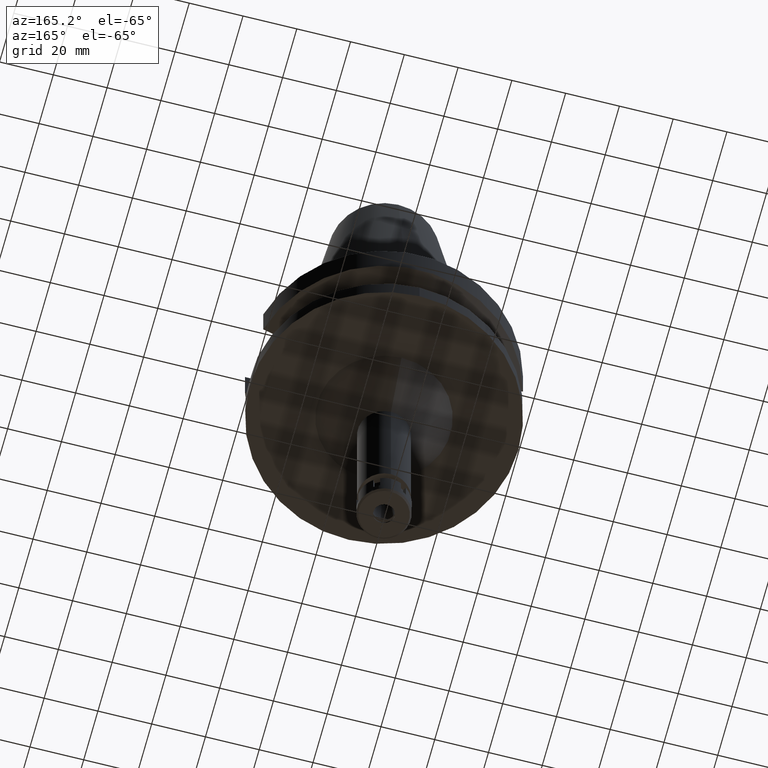
[diagram: clean part render]
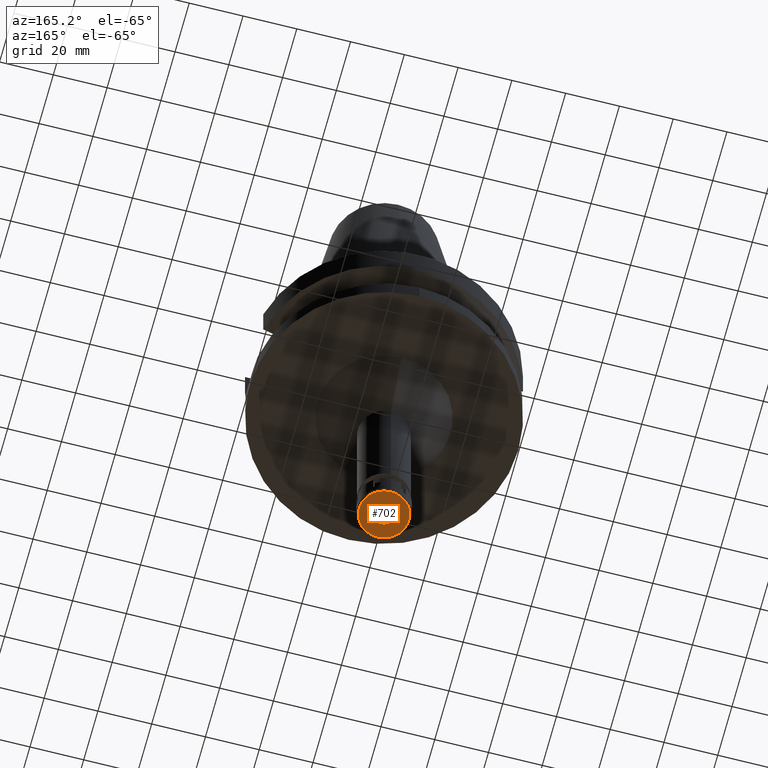
[diagram: same view with one face highlighted and labeled with its STEP entity id]
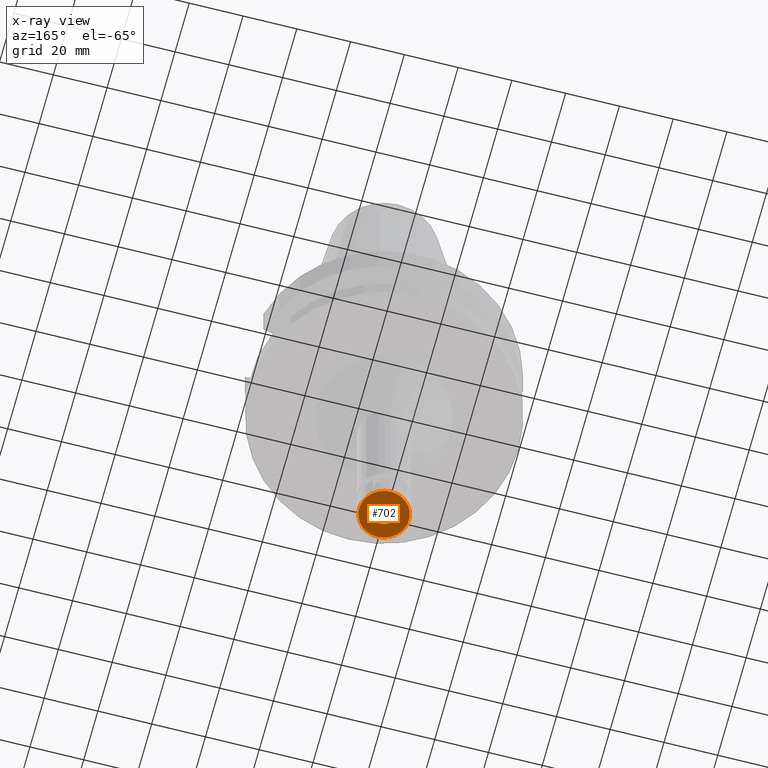
[diagram: x-ray of the same camera — body ghosted, the highlighted face saturated]
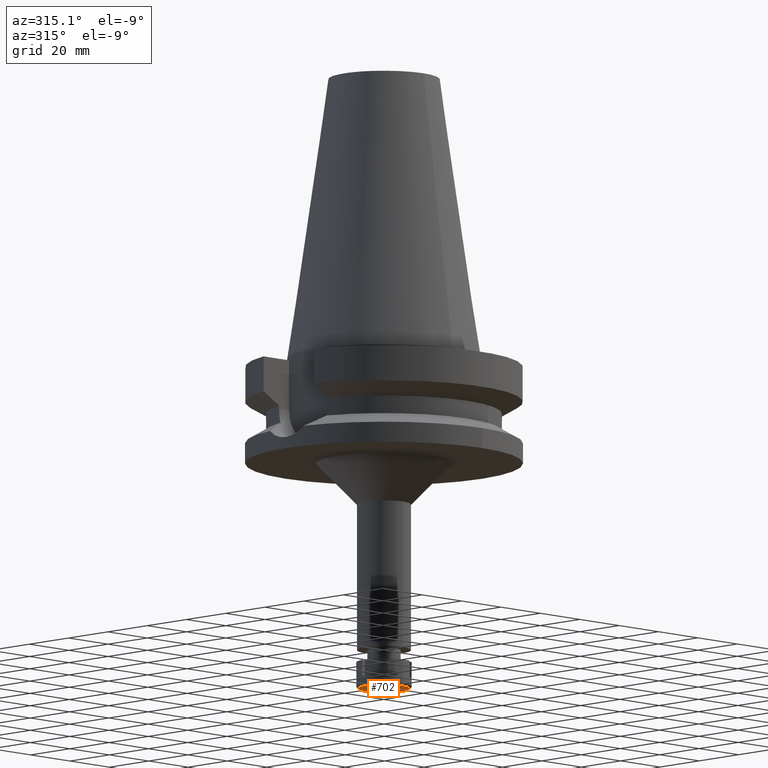
[diagram: same view with one face highlighted and labeled with its STEP entity id]
A machine part, auxiliary view. The second image highlights one B-rep face of the part: STEP entity #702.
The next image is the same camera in x-ray: the body ghosted, the highlighted face saturated — about 0% of this face is hidden behind the body in this view.
A second angle (auxiliary view) of the same face is appended — the face is thin or edge-on in the first view.
In plain terms, the highlighted planar face has unit normal (0, 0, -1).
Its self-contained STEP definition (entity closure, byte-faithful):
#91 = PLANE ( 'NONE',  #380 ) ;
#206 = CARTESIAN_POINT ( 'NONE',  ( 0.0000000000000000000, 9.299999999999998934, -9.500000000000000000 ) ) ;
#380 = AXIS2_PLACEMENT_3D ( 'NONE', #629, #2968, #644 ) ;
#471 = VERTEX_POINT ( 'NONE', #951 ) ;
#560 = DIRECTION ( 'NONE',  ( 0.0000000000000000000, 0.0000000000000000000, 1.000000000000000000 ) ) ;
#629 = CARTESIAN_POINT ( 'NONE',  ( 0.0000000000000000000, 0.0000000000000000000, -9.500000000000000000 ) ) ;
#644 = DIRECTION ( 'NONE',  ( 0.0000000000000000000, -1.000000000000000000, 0.0000000000000000000 ) ) ;
#681 = CIRCLE ( 'NONE', #2900, 3.950000000000000178 ) ;
#698 = FACE_OUTER_BOUND ( 'NONE', #876, .T. ) ;
#702 = ADVANCED_FACE ( 'NONE', ( #698, #2101 ), #91, .T. ) ;
#876 = EDGE_LOOP ( 'NONE', ( #3064, #2200 ) ) ;
#912 = EDGE_CURVE ( 'NONE', #2658, #2076, #3186, .T. ) ;
#951 = CARTESIAN_POINT ( 'NONE',  ( 0.0000000000000000000, 3.950000000000000178, -9.500000000000000000 ) ) ;
#1052 = CARTESIAN_POINT ( 'NONE',  ( 0.0000000000000000000, 0.0000000000000000000, -9.500000000000000000 ) ) ;
#1151 = VERTEX_POINT ( 'NONE', #1608 ) ;
#1192 = CARTESIAN_POINT ( 'NONE',  ( 0.0000000000000000000, 0.0000000000000000000, -9.500000000000000000 ) ) ;
#1249 = CARTESIAN_POINT ( 'NONE',  ( 0.0000000000000000000, -9.299999999999998934, -9.500000000000000000 ) ) ;
#1323 = EDGE_LOOP ( 'NONE', ( #2716, #2184 ) ) ;
#1470 = DIRECTION ( 'NONE',  ( 0.0000000000000000000, 1.000000000000000000, 0.0000000000000000000 ) ) ;
#1557 = CARTESIAN_POINT ( 'NONE',  ( 0.0000000000000000000, 0.0000000000000000000, -9.500000000000000000 ) ) ;
#1608 = CARTESIAN_POINT ( 'NONE',  ( 0.0000000000000000000, -3.950000000000000178, -9.500000000000000000 ) ) ;
#1881 = CIRCLE ( 'NONE', #3317, 3.950000000000000178 ) ;
#2076 = VERTEX_POINT ( 'NONE', #1249 ) ;
#2083 = EDGE_CURVE ( 'NONE', #1151, #471, #681, .T. ) ;
#2101 = FACE_BOUND ( 'NONE', #1323, .T. ) ;
#2106 = AXIS2_PLACEMENT_3D ( 'NONE', #1192, #2626, #1470 ) ;
#2184 = ORIENTED_EDGE ( 'NONE', *, *, #2083, .F. ) ;
#2200 = ORIENTED_EDGE ( 'NONE', *, *, #2598, .F. ) ;
#2388 = DIRECTION ( 'NONE',  ( 0.0000000000000000000, -1.000000000000000000, 0.0000000000000000000 ) ) ;
#2579 = DIRECTION ( 'NONE',  ( 0.0000000000000000000, 0.0000000000000000000, -1.000000000000000000 ) ) ;
#2598 = EDGE_CURVE ( 'NONE', #2076, #2658, #2836, .T. ) ;
#2626 = DIRECTION ( 'NONE',  ( 0.0000000000000000000, 0.0000000000000000000, 1.000000000000000000 ) ) ;
#2658 = VERTEX_POINT ( 'NONE', #206 ) ;
#2716 = ORIENTED_EDGE ( 'NONE', *, *, #2844, .F. ) ;
#2836 = CIRCLE ( 'NONE', #3505, 9.299999999999998934 ) ;
#2844 = EDGE_CURVE ( 'NONE', #471, #1151, #1881, .T. ) ;
#2900 = AXIS2_PLACEMENT_3D ( 'NONE', #1557, #2941, #2388 ) ;
#2941 = DIRECTION ( 'NONE',  ( 0.0000000000000000000, 0.0000000000000000000, -1.000000000000000000 ) ) ;
#2968 = DIRECTION ( 'NONE',  ( 0.0000000000000000000, 0.0000000000000000000, -1.000000000000000000 ) ) ;
#3064 = ORIENTED_EDGE ( 'NONE', *, *, #912, .F. ) ;
#3100 = DIRECTION ( 'NONE',  ( 0.0000000000000000000, -1.000000000000000000, 0.0000000000000000000 ) ) ;
#3160 = DIRECTION ( 'NONE',  ( 0.0000000000000000000, 1.000000000000000000, 0.0000000000000000000 ) ) ;
#3186 = CIRCLE ( 'NONE', #2106, 9.299999999999998934 ) ;
#3317 = AXIS2_PLACEMENT_3D ( 'NONE', #3468, #2579, #3160 ) ;
#3468 = CARTESIAN_POINT ( 'NONE',  ( 0.0000000000000000000, 0.0000000000000000000, -9.500000000000000000 ) ) ;
#3505 = AXIS2_PLACEMENT_3D ( 'NONE', #1052, #560, #3100 ) ;